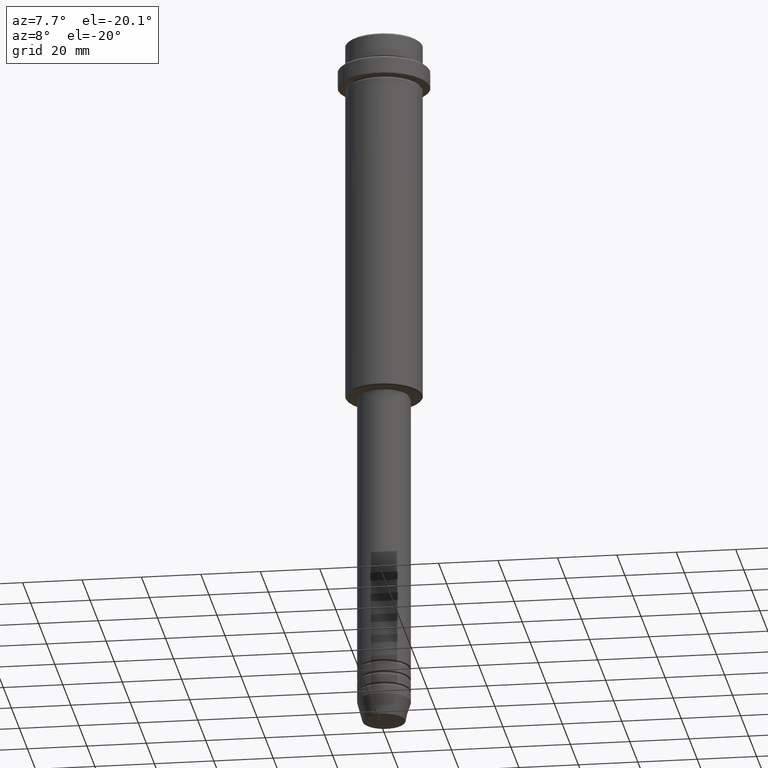
[diagram: clean part render]
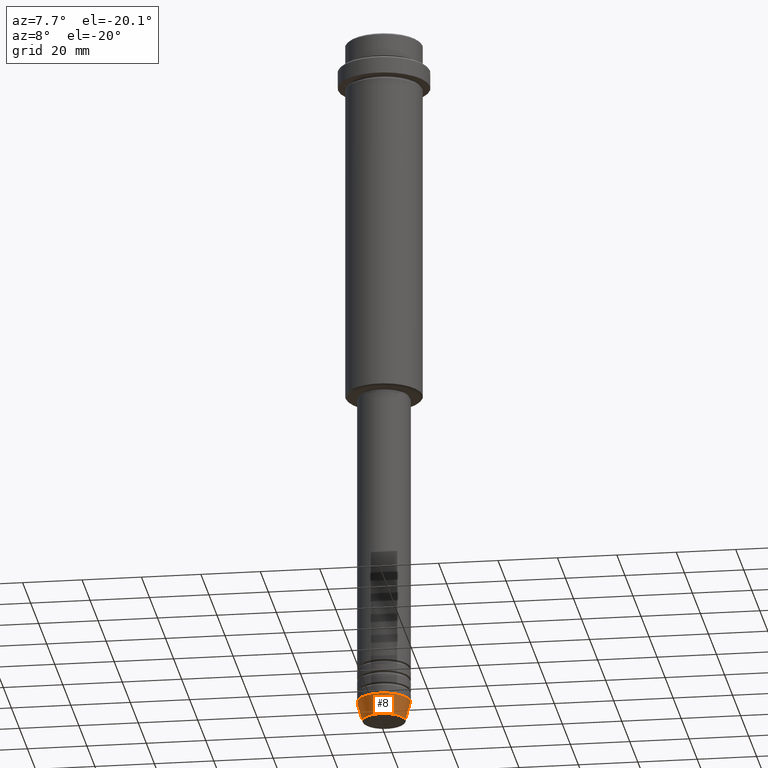
[diagram: same view with one face highlighted and labeled with its STEP entity id]
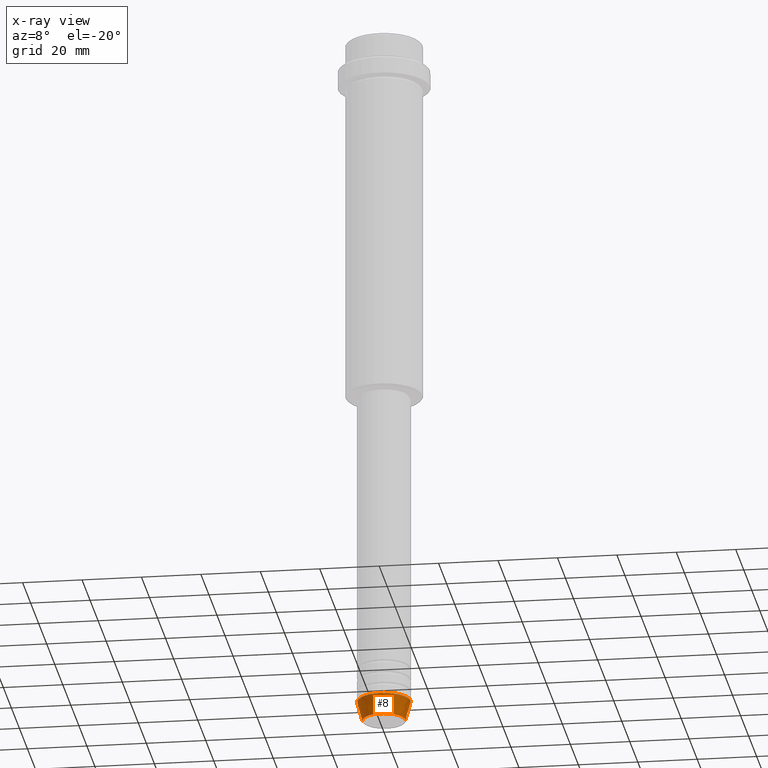
[diagram: x-ray of the same camera — body ghosted, the highlighted face saturated]
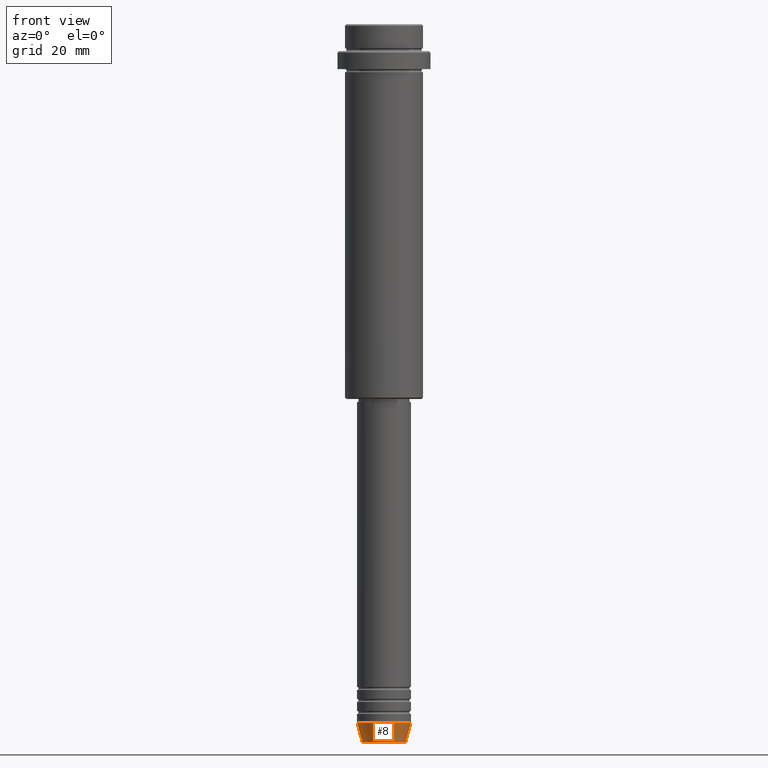
[diagram: same view with one face highlighted and labeled with its STEP entity id]
A machine part, auxiliary view. The second image highlights one B-rep face of the part: STEP entity #8.
The next image is the same camera in x-ray: the body ghosted, the highlighted face saturated — about 0% of this face is hidden behind the body in this view.
A second angle (front view) of the same face is appended — the face is thin or edge-on in the first view.
In plain terms, the highlighted conical surface has half-angle 15 deg.
Its self-contained STEP definition (entity closure, byte-faithful):
#8 = ADVANCED_FACE ( 'NONE', ( #451 ), #293, .T. ) ;
#15 = AXIS2_PLACEMENT_3D ( 'NONE', #47, #1154, #137 ) ;
#21 = ORIENTED_EDGE ( 'NONE', *, *, #431, .F. ) ;
#30 = EDGE_LOOP ( 'NONE', ( #21, #980, #1357, #732 ) ) ;
#47 = CARTESIAN_POINT ( 'NONE',  ( 0.000000000000000000, 0.000000000000000000, -232.9999999999999716 ) ) ;
#80 = EDGE_CURVE ( 'NONE', #595, #221, #645, .T. ) ;
#100 = DIRECTION ( 'NONE',  ( 1.000000000000000000, 0.000000000000000000, 0.000000000000000000 ) ) ;
#137 = DIRECTION ( 'NONE',  ( 1.000000000000000000, 0.000000000000000000, 0.000000000000000000 ) ) ;
#187 = CARTESIAN_POINT ( 'NONE',  ( -9.000000000000000000, 1.102182119232617714E-15, -232.9999999999999716 ) ) ;
#209 = CARTESIAN_POINT ( 'NONE',  ( 9.000000000000000000, 0.000000000000000000, -232.9999999999999716 ) ) ;
#218 = LINE ( 'NONE', #209, #600 ) ;
#221 = VERTEX_POINT ( 'NONE', #463 ) ;
#234 = CARTESIAN_POINT ( 'NONE',  ( 0.000000000000000000, 0.000000000000000000, -232.9999999999999716 ) ) ;
#293 = CONICAL_SURFACE ( 'NONE', #1123, 9.000000000000000000, 0.2617993877991500740 ) ;
#338 = DIRECTION ( 'NONE',  ( 1.000000000000000000, 0.000000000000000000, 0.000000000000000000 ) ) ;
#346 = VERTEX_POINT ( 'NONE', #934 ) ;
#431 = EDGE_CURVE ( 'NONE', #346, #595, #1365, .T. ) ;
#451 = FACE_OUTER_BOUND ( 'NONE', #30, .T. ) ;
#463 = CARTESIAN_POINT ( 'NONE',  ( 9.000000000000000000, 0.000000000000000000, -232.9999999999999716 ) ) ;
#561 = DIRECTION ( 'NONE',  ( 0.2588190451025213501, 0.000000000000000000, 0.9659258262890680902 ) ) ;
#595 = VERTEX_POINT ( 'NONE', #767 ) ;
#596 = EDGE_CURVE ( 'NONE', #1180, #221, #218, .T. ) ;
#600 = VECTOR ( 'NONE', #561, 1000.000000000000000 ) ;
#636 = EDGE_CURVE ( 'NONE', #346, #1180, #1343, .T. ) ;
#645 = CIRCLE ( 'NONE', #15, 9.000000000000000000 ) ;
#715 = VECTOR ( 'NONE', #748, 1000.000000000000000 ) ;
#732 = ORIENTED_EDGE ( 'NONE', *, *, #80, .F. ) ;
#748 = DIRECTION ( 'NONE',  ( -0.2588190451025213501, 3.169619151431772337E-17, 0.9659258262890680902 ) ) ;
#767 = CARTESIAN_POINT ( 'NONE',  ( -9.000000000000000000, 1.102182119232617714E-15, -232.9999999999999716 ) ) ;
#896 = DIRECTION ( 'NONE',  ( -0.000000000000000000, -0.000000000000000000, 1.000000000000000000 ) ) ;
#906 = AXIS2_PLACEMENT_3D ( 'NONE', #994, #1095, #100 ) ;
#934 = CARTESIAN_POINT ( 'NONE',  ( -7.223655072137189492, 9.934123627281765110E-16, -239.6294095225512706 ) ) ;
#980 = ORIENTED_EDGE ( 'NONE', *, *, #636, .T. ) ;
#994 = CARTESIAN_POINT ( 'NONE',  ( 0.000000000000000000, 0.000000000000000000, -239.6294095225512706 ) ) ;
#1086 = CARTESIAN_POINT ( 'NONE',  ( 7.223655072137188604, 0.000000000000000000, -239.6294095225512706 ) ) ;
#1095 = DIRECTION ( 'NONE',  ( -0.000000000000000000, -0.000000000000000000, 1.000000000000000000 ) ) ;
#1123 = AXIS2_PLACEMENT_3D ( 'NONE', #234, #896, #338 ) ;
#1154 = DIRECTION ( 'NONE',  ( -0.000000000000000000, -0.000000000000000000, 1.000000000000000000 ) ) ;
#1180 = VERTEX_POINT ( 'NONE', #1086 ) ;
#1343 = CIRCLE ( 'NONE', #906, 7.223655072137188604 ) ;
#1357 = ORIENTED_EDGE ( 'NONE', *, *, #596, .T. ) ;
#1365 = LINE ( 'NONE', #187, #715 ) ;